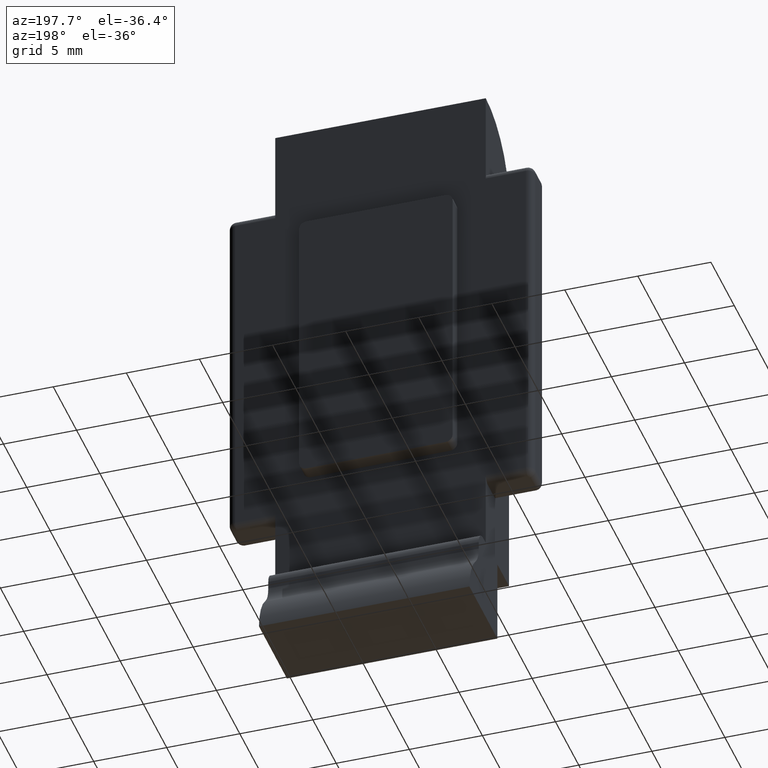
[diagram: clean part render]
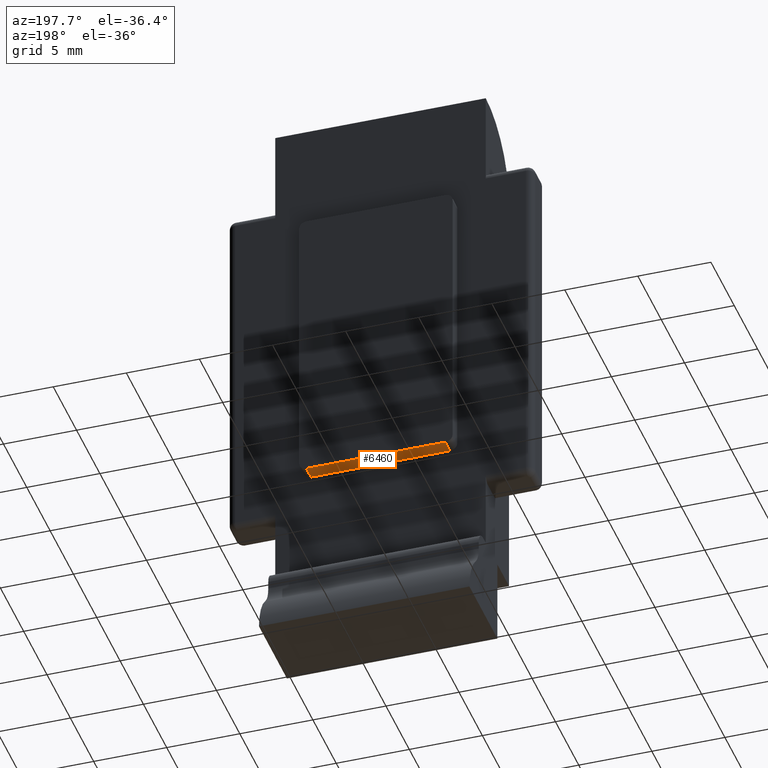
[diagram: same view with one face highlighted and labeled with its STEP entity id]
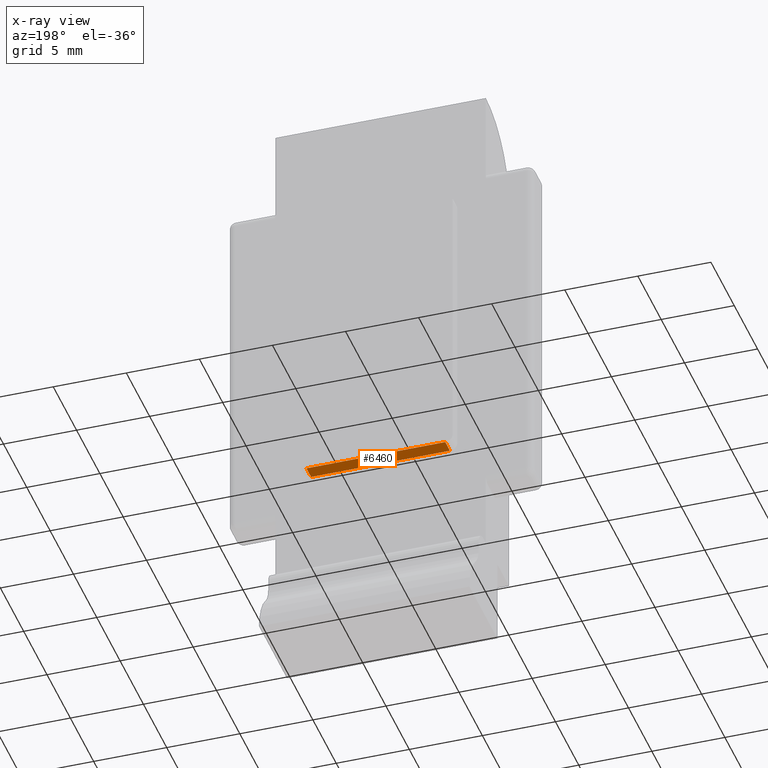
[diagram: x-ray of the same camera — body ghosted, the highlighted face saturated]
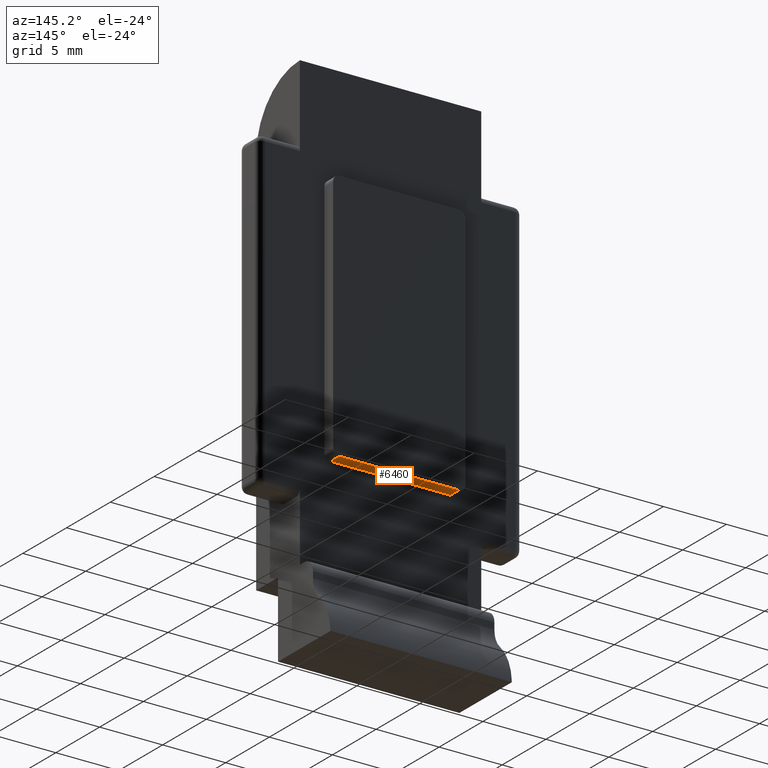
[diagram: same view with one face highlighted and labeled with its STEP entity id]
A machine part, auxiliary view. The second image highlights one B-rep face of the part: STEP entity #6460.
The next image is the same camera in x-ray: the body ghosted, the highlighted face saturated — about 0% of this face is hidden behind the body in this view.
A second angle (auxiliary view) of the same face is appended — the face is thin or edge-on in the first view.
In plain terms, the highlighted planar face has unit normal (0, -0, 1).
Its self-contained STEP definition (entity closure, byte-faithful):
#170 = CARTESIAN_POINT ( 'NONE',  ( 0.0000000000000000000, 1.000000000000000200, -0.5000000000000004400 ) ) ;
#879 = ORIENTED_EDGE ( 'NONE', *, *, #5801, .T. ) ;
#1306 = CARTESIAN_POINT ( 'NONE',  ( 0.0000000000000000000, 1.000000000000000200, 0.0000000000000000000 ) ) ;
#1493 = DIRECTION ( 'NONE',  ( 0.0000000000000000000, 0.0000000000000000000, -1.000000000000000000 ) ) ;
#1725 = VERTEX_POINT ( 'NONE', #7787 ) ;
#1990 = FACE_OUTER_BOUND ( 'NONE', #5594, .T. ) ;
#2107 = EDGE_CURVE ( 'NONE', #8286, #7519, #6950, .T. ) ;
#2513 = CARTESIAN_POINT ( 'NONE',  ( 0.0000000000000000000, 1.000000000000000200, -9.999999999999996400 ) ) ;
#2598 = LINE ( 'NONE', #8028, #4648 ) ;
#3092 = VECTOR ( 'NONE', #5403, 1000.000000000000000 ) ;
#3193 = DIRECTION ( 'NONE',  ( 1.454462294001164300E-030, 1.000000000000000000, 0.0000000000000000000 ) ) ;
#3440 = LINE ( 'NONE', #170, #9156 ) ;
#3962 = ORIENTED_EDGE ( 'NONE', *, *, #2107, .F. ) ;
#4079 = VERTEX_POINT ( 'NONE', #5094 ) ;
#4359 = VECTOR ( 'NONE', #5328, 1000.000000000000000 ) ;
#4648 = VECTOR ( 'NONE', #8812, 1000.000000000000000 ) ;
#5094 = CARTESIAN_POINT ( 'NONE',  ( 0.0000000000000000000, 0.0000000000000000000, -9.999999999999996400 ) ) ;
#5174 = CARTESIAN_POINT ( 'NONE',  ( 0.0000000000000000000, 1.000000000000000200, -10.00000000000000000 ) ) ;
#5294 = CARTESIAN_POINT ( 'NONE',  ( 0.0000000000000000000, 1.000000000000000200, 0.0000000000000000000 ) ) ;
#5328 = DIRECTION ( 'NONE',  ( 0.0000000000000000000, 0.0000000000000000000, 1.000000000000000000 ) ) ;
#5403 = DIRECTION ( 'NONE',  ( -1.454462294001164300E-030, -1.000000000000000000, -0.0000000000000000000 ) ) ;
#5594 = EDGE_LOOP ( 'NONE', ( #3962, #8737, #879, #9931 ) ) ;
#5801 = EDGE_CURVE ( 'NONE', #4079, #1725, #2598, .T. ) ;
#5960 = EDGE_CURVE ( 'NONE', #8286, #4079, #8942, .T. ) ;
#6460 = ADVANCED_FACE ( 'NONE', ( #1990 ), #9659, .F. ) ;
#6755 = AXIS2_PLACEMENT_3D ( 'NONE', #1306, #8984, #1493 ) ;
#6950 = LINE ( 'NONE', #5294, #4359 ) ;
#7209 = CARTESIAN_POINT ( 'NONE',  ( 0.0000000000000000000, 1.000000000000000200, -0.4999999999999995600 ) ) ;
#7519 = VERTEX_POINT ( 'NONE', #7209 ) ;
#7749 = EDGE_CURVE ( 'NONE', #1725, #7519, #3440, .T. ) ;
#7787 = CARTESIAN_POINT ( 'NONE',  ( 0.0000000000000000000, 0.0000000000000000000, -0.4999999999999995600 ) ) ;
#8028 = CARTESIAN_POINT ( 'NONE',  ( 0.0000000000000000000, 0.0000000000000000000, 0.0000000000000000000 ) ) ;
#8286 = VERTEX_POINT ( 'NONE', #2513 ) ;
#8737 = ORIENTED_EDGE ( 'NONE', *, *, #5960, .T. ) ;
#8812 = DIRECTION ( 'NONE',  ( 0.0000000000000000000, 0.0000000000000000000, 1.000000000000000000 ) ) ;
#8942 = LINE ( 'NONE', #5174, #3092 ) ;
#8984 = DIRECTION ( 'NONE',  ( 1.000000000000000000, -1.454462294001164300E-030, 0.0000000000000000000 ) ) ;
#9156 = VECTOR ( 'NONE', #3193, 1000.000000000000000 ) ;
#9659 = PLANE ( 'NONE',  #6755 ) ;
#9931 = ORIENTED_EDGE ( 'NONE', *, *, #7749, .T. ) ;